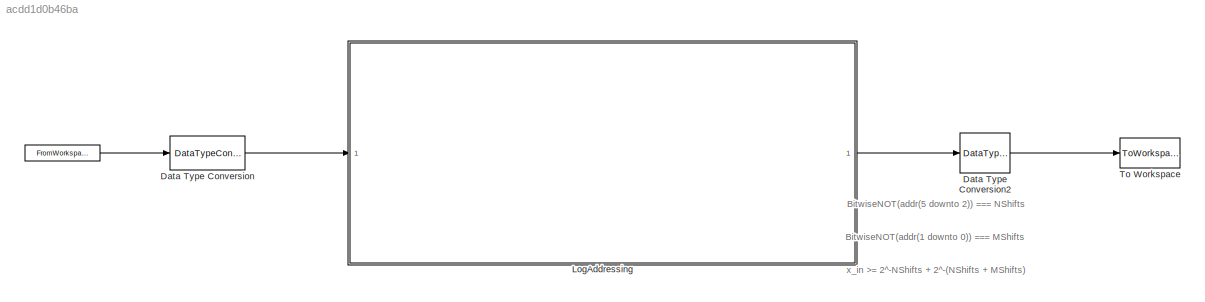
MODEL slx_acdd1d0b46ba
KIND model
CONFIG AbsTol = auto
CONFIG EnableMultiTasking = off
CONFIG FixedStep = auto
CONFIG InitFcn = Fs_system = 98*10^6; %98 MHz\nTs_system = 1/Fs_system;\n\nx_ts = logspace(-5, 0.2, 1000000)';\ntt = 0:Ts_system:999999*Ts_system;\nt_end = tt(end);\n\nW_bits = 32;\nF_bits = 28;\n\nx_ts = [tt', x_ts];
CONFIG MaxStep = auto
CONFIG MinStep = auto
CONFIG RelTol = 1e-3
CONFIG SampleTimeConstraint = Unconstrained
CONFIG Solver = VariableStepAuto
CONFIG SolverName = VariableStepAuto
CONFIG StartTime = 0.0
CONFIG StopTime = t_end
BLOCK [FromWorkspace]  
  Interpolate = off
  OutputAfterFinalValue = Holding final value
  SampleTime = Ts_system
  VariableName = x_ts
BLOCK [DataTypeConversion] Data Type Conversion
  OutDataTypeStr = fixdt(0,W_bits,F_bits)
  RndMeth = Floor
  SaturateOnIntegerOverflow = off
BLOCK [DataTypeConversion] Data Type Conversion2
  OutDataTypeStr = fixdt(0,6,0)
  RndMeth = Floor
  SaturateOnIntegerOverflow = off
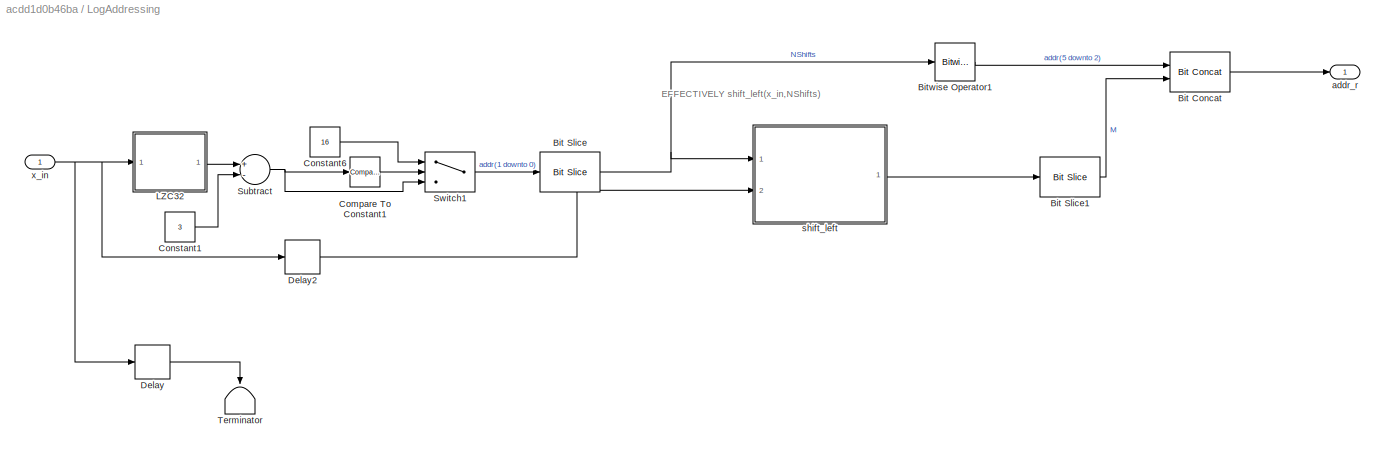
BLOCK [SubSystem] LogAddressing
  Ports = [1, 1]
  RequestExecContextInheritance = off
BLOCK [Reference] LogAddressing/Bit Concat  REF=hdlsllib/Logic and Bit
Operations/Bit Concat
  Ports = [2, 1]
  SourceBlock = hdlsllib/Logic and Bit\nOperations/Bit Concat
  SourceProductBaseCode = SL
  SourceProductName = Simulink
  SourceType = Bit Concat
BLOCK [Reference] LogAddressing/Bit Slice  REF=hdlsllib/Logic and Bit
Operations/Bit Slice
  Ports = [1, 1]
  SourceBlock = hdlsllib/Logic and Bit\nOperations/Bit Slice
  SourceProductBaseCode = SL
  SourceProductName = Simulink
  SourceType = Bit Slice
BLOCK [Reference] LogAddressing/Bit Slice1  REF=hdlsllib/Logic and Bit
Operations/Bit Slice
  Ports = [1, 1]
  SourceBlock = hdlsllib/Logic and Bit\nOperations/Bit Slice
  SourceProductBaseCode = SL
  SourceProductName = Simulink
  SourceType = Bit Slice
BLOCK [Reference] LogAddressing/Bitwise Operator1  REF=simulink/Logic and Bit
Operations/Bitwise
Operator
  Ports = [1, 1]
  SourceBlock = simulink/Logic and Bit\nOperations/Bitwise\nOperator
  SourceProductBaseCode = SL
  SourceProductName = Simulink
  SourceType = Bitwise Operator
BLOCK [Reference] LogAddressing/Compare To Constant1  REF=simulink/Logic and Bit
Operations/Compare
To Constant
  Ports = [1, 1]
  SourceBlock = simulink/Logic and Bit\nOperations/Compare\nTo Constant
  SourceProductBaseCode = SL
  SourceProductName = Simulink
  SourceType = Compare To Constant
BLOCK [Constant] LogAddressing/Constant1
  SampleTime = -1
  Value = 3
BLOCK [Constant] LogAddressing/Constant6
  OutDataTypeStr = fixdt(0,6)
  SampleTime = -1
  Value = 16
BLOCK [Delay] LogAddressing/Delay
  DelayLength = 1
  InputPortMap = u0
  Ports = [1, 1]
  SampleTime = Ts_system
BLOCK [Delay] LogAddressing/Delay2
  DelayLength = 1
  InputPortMap = u0
  Ports = [1, 1]
  SampleTime = Ts_system
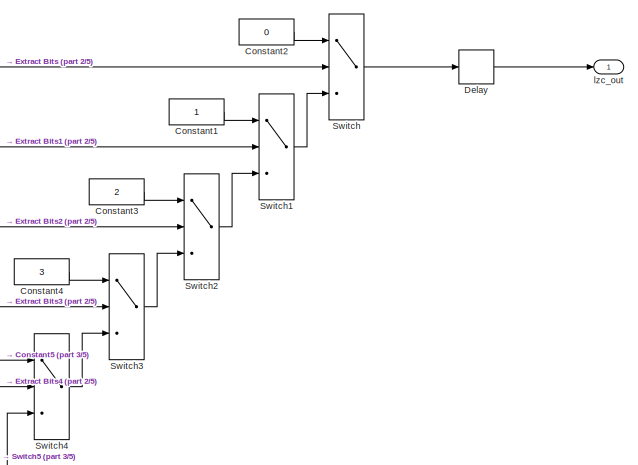
[diagram: LogAddressing/LZC32 - part 1/5, top right region]
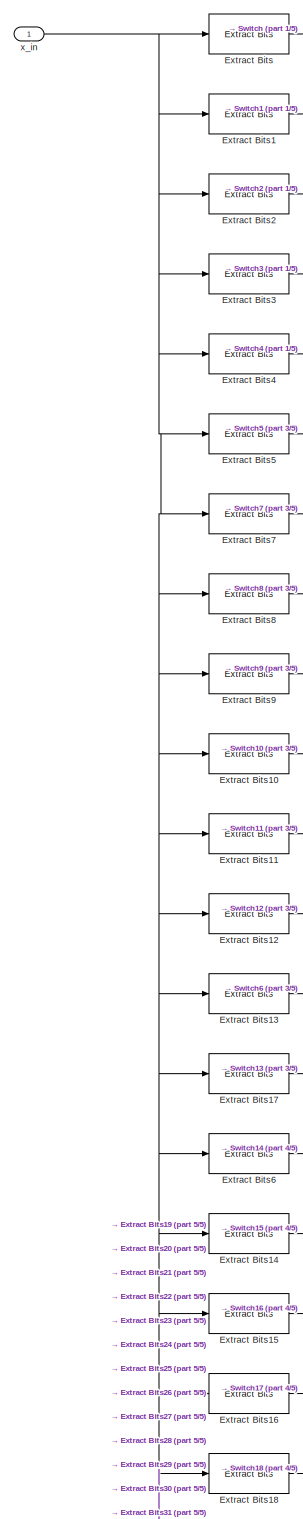
[diagram: LogAddressing/LZC32 - part 2/5, top left region]
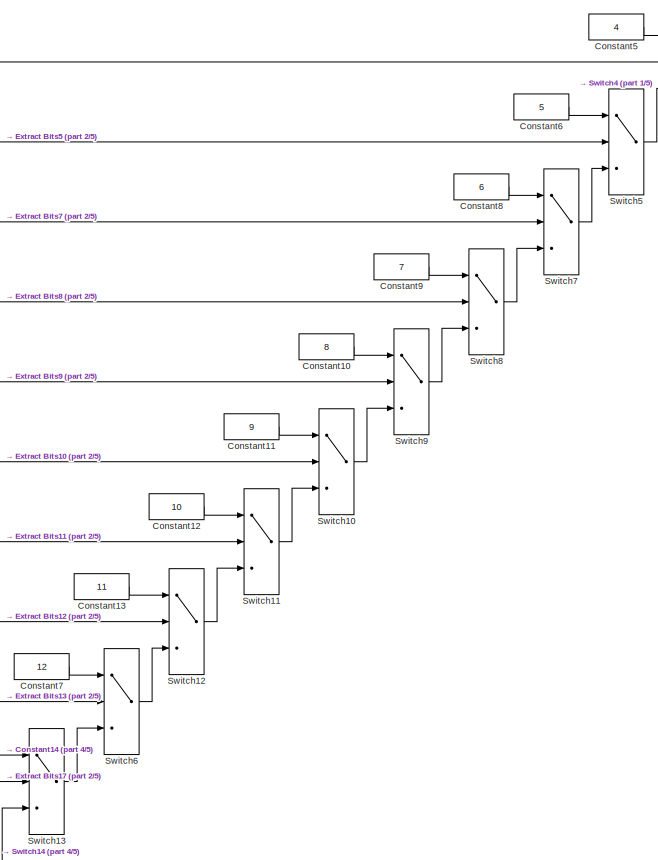
[diagram: LogAddressing/LZC32 - part 3/5, top right region]
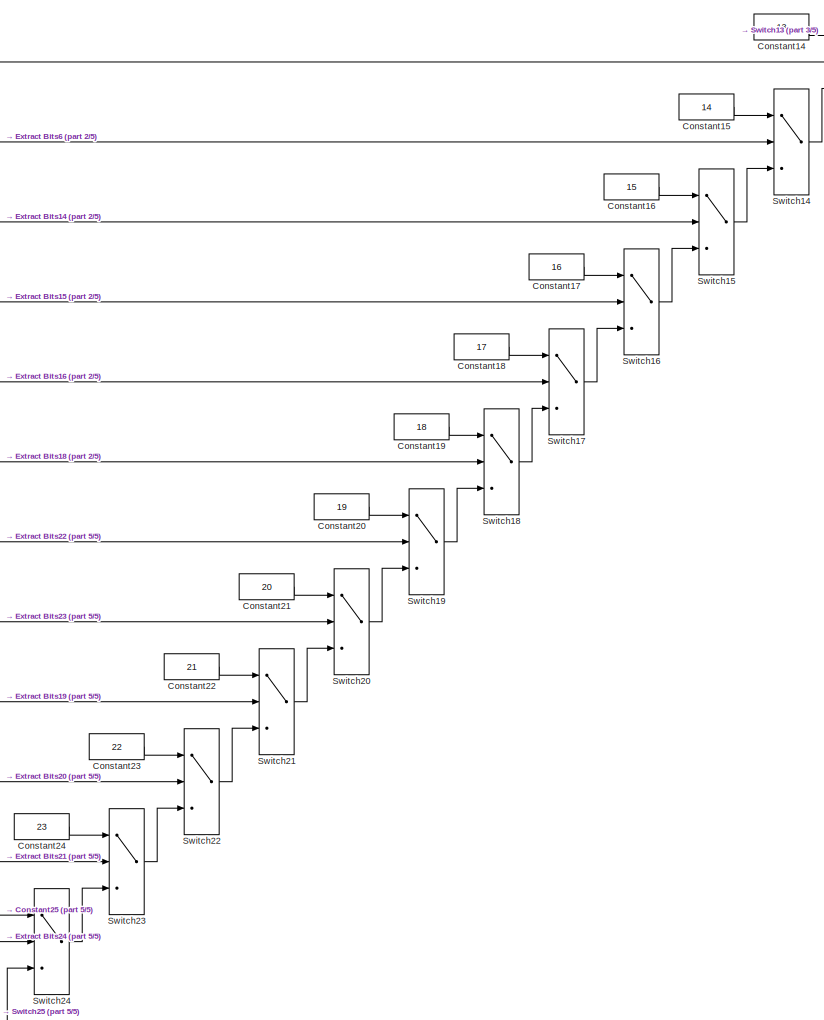
[diagram: LogAddressing/LZC32 - part 4/5, central region]
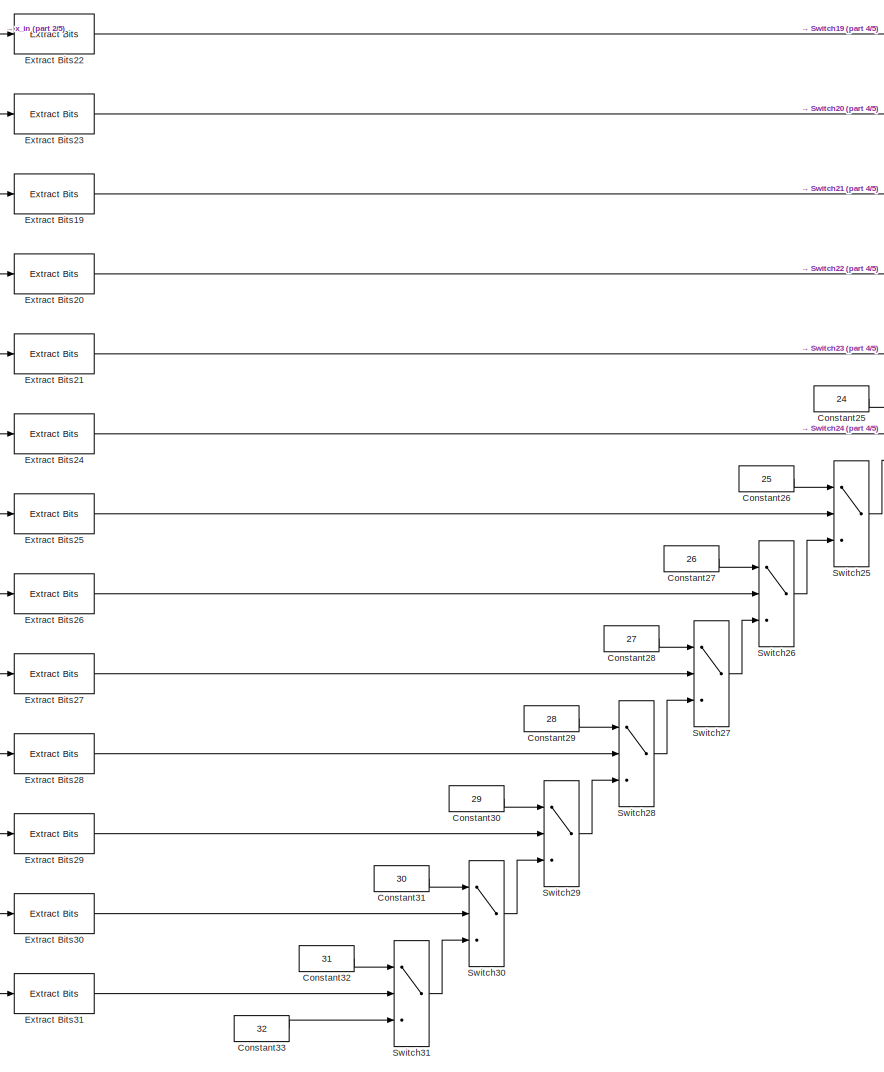
[diagram: LogAddressing/LZC32 - part 5/5, bottom left region]
BLOCK [SubSystem] LogAddressing/LZC32
  Ports = [1, 1]
  RequestExecContextInheritance = off
  TreatAsAtomicUnit = on
BLOCK [Constant] LogAddressing/LZC32/Constant1
  OutDataTypeStr = fixdt(0,6,0)
  SampleTime = Ts_system
BLOCK [Constant] LogAddressing/LZC32/Constant10
  OutDataTypeStr = fixdt(0,6,0)
  SampleTime = Ts_system
  Value = 8
BLOCK [Constant] LogAddressing/LZC32/Constant11
  OutDataTypeStr = fixdt(0,6,0)
  SampleTime = Ts_system
  Value = 9
BLOCK [Constant] LogAddressing/LZC32/Constant12
  OutDataTypeStr = fixdt(0,6,0)
  SampleTime = Ts_system
  Value = 10
BLOCK [Constant] LogAddressing/LZC32/Constant13
  OutDataTypeStr = fixdt(0,6,0)
  SampleTime = Ts_system
  Value = 11
BLOCK [Constant] LogAddressing/LZC32/Constant14
  OutDataTypeStr = fixdt(0,6,0)
  SampleTime = Ts_system
  Value = 13
BLOCK [Constant] LogAddressing/LZC32/Constant15
  OutDataTypeStr = fixdt(0,6,0)
  SampleTime = Ts_system
  Value = 14
BLOCK [Constant] LogAddressing/LZC32/Constant16
  OutDataTypeStr = fixdt(0,6,0)
  SampleTime = Ts_system
  Value = 15
BLOCK [Constant] LogAddressing/LZC32/Constant17
  OutDataTypeStr = fixdt(0,6,0)
  SampleTime = Ts_system
  Value = 16
BLOCK [Constant] LogAddressing/LZC32/Constant18
  OutDataTypeStr = fixdt(0,6,0)
  SampleTime = Ts_system
  Value = 17
BLOCK [Constant] LogAddressing/LZC32/Constant19
  OutDataTypeStr = fixdt(0,6,0)
  SampleTime = Ts_system
  Value = 18
BLOCK [Constant] LogAddressing/LZC32/Constant2
  OutDataTypeStr = fixdt(0,6,0)
  SampleTime = Ts_system
  Value = 0
BLOCK [Constant] LogAddressing/LZC32/Constant20
  OutDataTypeStr = fixdt(0,6,0)
  SampleTime = Ts_system
  Value = 19
BLOCK [Constant] LogAddressing/LZC32/Constant21
  OutDataTypeStr = fixdt(0,6,0)
  SampleTime = Ts_system
  Value = 20
BLOCK [Constant] LogAddressing/LZC32/Constant22
  OutDataTypeStr = fixdt(0,6,0)
  SampleTime = Ts_system
  Value = 21
BLOCK [Constant] LogAddressing/LZC32/Constant23
  OutDataTypeStr = fixdt(0,6,0)
  SampleTime = Ts_system
  Value = 22
BLOCK [Constant] LogAddressing/LZC32/Constant24
  OutDataTypeStr = fixdt(0,6,0)
  SampleTime = Ts_system
  Value = 23
BLOCK [Constant] LogAddressing/LZC32/Constant25
  OutDataTypeStr = fixdt(0,6,0)
  SampleTime = Ts_system
  Value = 24
BLOCK [Constant] LogAddressing/LZC32/Constant26
  OutDataTypeStr = fixdt(0,6,0)
  SampleTime = Ts_system
  Value = 25
BLOCK [Constant] LogAddressing/LZC32/Constant27
  OutDataTypeStr = fixdt(0,6,0)
  SampleTime = Ts_system
  Value = 26
BLOCK [Constant] LogAddressing/LZC32/Constant28
  OutDataTypeStr = fixdt(0,6,0)
  SampleTime = Ts_system
  Value = 27
BLOCK [Constant] LogAddressing/LZC32/Constant29
  OutDataTypeStr = fixdt(0,6,0)
  SampleTime = Ts_system
  Value = 28
BLOCK [Constant] LogAddressing/LZC32/Constant3
  OutDataTypeStr = fixdt(0,6,0)
  SampleTime = Ts_system
  Value = 2
BLOCK [Constant] LogAddressing/LZC32/Constant30
  OutDataTypeStr = fixdt(0,6,0)
  SampleTime = Ts_system
  Value = 29
BLOCK [Constant] LogAddressing/LZC32/Constant31
  OutDataTypeStr = fixdt(0,6,0)
  SampleTime = Ts_system
  Value = 30
BLOCK [Constant] LogAddressing/LZC32/Constant32
  OutDataTypeStr = fixdt(0,6,0)
  SampleTime = Ts_system
  Value = 31
BLOCK [Constant] LogAddressing/LZC32/Constant33
  OutDataTypeStr = fixdt(0,6,0)
  SampleTime = Ts_system
  Value = 32
BLOCK [Constant] LogAddressing/LZC32/Constant4
  OutDataTypeStr = fixdt(0,6,0)
  SampleTime = Ts_system
  Value = 3
BLOCK [Constant] LogAddressing/LZC32/Constant5
  OutDataTypeStr = fixdt(0,6,0)
  SampleTime = Ts_system
  Value = 4
BLOCK [Constant] LogAddressing/LZC32/Constant6
  OutDataTypeStr = fixdt(0,6,0)
  SampleTime = Ts_system
  Value = 5
BLOCK [Constant] LogAddressing/LZC32/Constant7
  OutDataTypeStr = fixdt(0,6,0)
  SampleTime = Ts_system
  Value = 12
BLOCK [Constant] LogAddressing/LZC32/Constant8
  OutDataTypeStr = fixdt(0,6,0)
  SampleTime = Ts_system
  Value = 6
BLOCK [Constant] LogAddressing/LZC32/Constant9
  OutDataTypeStr = fixdt(0,6,0)
  SampleTime = Ts_system
  Value = 7
BLOCK [Delay] LogAddressing/LZC32/Delay
  DelayLength = 1
  InputPortMap = u0
  Ports = [1, 1]
  SampleTime = Ts_system
BLOCK [Reference] LogAddressing/LZC32/Extract Bits  REF=simulink/Logic and Bit
Operations/Extract Bits
  Ports = [1, 1]
  SourceBlock = simulink/Logic and Bit\nOperations/Extract Bits
  SourceProductBaseCode = SL
  SourceProductName = Simulink
  SourceType = Extract Bits
BLOCK [Reference] LogAddressing/LZC32/Extract Bits1  REF=simulink/Logic and Bit
Operations/Extract Bits
  Ports = [1, 1]
  SourceBlock = simulink/Logic and Bit\nOperations/Extract Bits
  SourceProductBaseCode = SL
  SourceProductName = Simulink
  SourceType = Extract Bits
BLOCK [Reference] LogAddressing/LZC32/Extract Bits10  REF=simulink/Logic and Bit
Operations/Extract Bits
  Ports = [1, 1]
  SourceBlock = simulink/Logic and Bit\nOperations/Extract Bits
  SourceProductBaseCode = SL
  SourceProductName = Simulink
  SourceType = Extract Bits
BLOCK [Reference] LogAddressing/LZC32/Extract Bits11  REF=simulink/Logic and Bit
Operations/Extract Bits
  Ports = [1, 1]
  SourceBlock = simulink/Logic and Bit\nOperations/Extract Bits
  SourceProductBaseCode = SL
  SourceProductName = Simulink
  SourceType = Extract Bits
BLOCK [Reference] LogAddressing/LZC32/Extract Bits12  REF=simulink/Logic and Bit
Operations/Extract Bits
  Ports = [1, 1]
  SourceBlock = simulink/Logic and Bit\nOperations/Extract Bits
  SourceProductBaseCode = SL
  SourceProductName = Simulink
  SourceType = Extract Bits
BLOCK [Reference] LogAddressing/LZC32/Extract Bits13  REF=simulink/Logic and Bit
Operations/Extract Bits
  Ports = [1, 1]
  SourceBlock = simulink/Logic and Bit\nOperations/Extract Bits
  SourceProductBaseCode = SL
  SourceProductName = Simulink
  SourceType = Extract Bits
BLOCK [Reference] LogAddressing/LZC32/Extract Bits14  REF=simulink/Logic and Bit
Operations/Extract Bits
  Ports = [1, 1]
  SourceBlock = simulink/Logic and Bit\nOperations/Extract Bits
  SourceProductBaseCode = SL
  SourceProductName = Simulink
  SourceType = Extract Bits
BLOCK [Reference] LogAddressing/LZC32/Extract Bits15  REF=simulink/Logic and Bit
Operations/Extract Bits
  Ports = [1, 1]
  SourceBlock = simulink/Logic and Bit\nOperations/Extract Bits
  SourceProductBaseCode = SL
  SourceProductName = Simulink
  SourceType = Extract Bits
BLOCK [Reference] LogAddressing/LZC32/Extract Bits16  REF=simulink/Logic and Bit
Operations/Extract Bits
  Ports = [1, 1]
  SourceBlock = simulink/Logic and Bit\nOperations/Extract Bits
  SourceProductBaseCode = SL
  SourceProductName = Simulink
  SourceType = Extract Bits
BLOCK [Reference] LogAddressing/LZC32/Extract Bits17  REF=simulink/Logic and Bit
Operations/Extract Bits
  Ports = [1, 1]
  SourceBlock = simulink/Logic and Bit\nOperations/Extract Bits
  SourceProductBaseCode = SL
  SourceProductName = Simulink
  SourceType = Extract Bits
BLOCK [Reference] LogAddressing/LZC32/Extract Bits18  REF=simulink/Logic and Bit
Operations/Extract Bits
  Ports = [1, 1]
  SourceBlock = simulink/Logic and Bit\nOperations/Extract Bits
  SourceProductBaseCode = SL
  SourceProductName = Simulink
  SourceType = Extract Bits
BLOCK [Reference] LogAddressing/LZC32/Extract Bits19  REF=simulink/Logic and Bit
Operations/Extract Bits
  Ports = [1, 1]
  SourceBlock = simulink/Logic and Bit\nOperations/Extract Bits
  SourceProductBaseCode = SL
  SourceProductName = Simulink
  SourceType = Extract Bits
BLOCK [Reference] LogAddressing/LZC32/Extract Bits2  REF=simulink/Logic and Bit
Operations/Extract Bits
  Ports = [1, 1]
  SourceBlock = simulink/Logic and Bit\nOperations/Extract Bits
  SourceProductBaseCode = SL
  SourceProductName = Simulink
  SourceType = Extract Bits
BLOCK [Reference] LogAddressing/LZC32/Extract Bits20  REF=simulink/Logic and Bit
Operations/Extract Bits
  Ports = [1, 1]
  SourceBlock = simulink/Logic and Bit\nOperations/Extract Bits
  SourceProductBaseCode = SL
  SourceProductName = Simulink
  SourceType = Extract Bits
BLOCK [Reference] LogAddressing/LZC32/Extract Bits21  REF=simulink/Logic and Bit
Operations/Extract Bits
  Ports = [1, 1]
  SourceBlock = simulink/Logic and Bit\nOperations/Extract Bits
  SourceProductBaseCode = SL
  SourceProductName = Simulink
  SourceType = Extract Bits
BLOCK [Reference] LogAddressing/LZC32/Extract Bits22  REF=simulink/Logic and Bit
Operations/Extract Bits
  Ports = [1, 1]
  SourceBlock = simulink/Logic and Bit\nOperations/Extract Bits
  SourceProductBaseCode = SL
  SourceProductName = Simulink
  SourceType = Extract Bits
BLOCK [Reference] LogAddressing/LZC32/Extract Bits23  REF=simulink/Logic and Bit
Operations/Extract Bits
  Ports = [1, 1]
  SourceBlock = simulink/Logic and Bit\nOperations/Extract Bits
  SourceProductBaseCode = SL
  SourceProductName = Simulink
  SourceType = Extract Bits
BLOCK [Reference] LogAddressing/LZC32/Extract Bits24  REF=simulink/Logic and Bit
Operations/Extract Bits
  Ports = [1, 1]
  SourceBlock = simulink/Logic and Bit\nOperations/Extract Bits
  SourceProductBaseCode = SL
  SourceProductName = Simulink
  SourceType = Extract Bits
BLOCK [Reference] LogAddressing/LZC32/Extract Bits25  REF=simulink/Logic and Bit
Operations/Extract Bits
  Ports = [1, 1]
  SourceBlock = simulink/Logic and Bit\nOperations/Extract Bits
  SourceProductBaseCode = SL
  SourceProductName = Simulink
  SourceType = Extract Bits
BLOCK [Reference] LogAddressing/LZC32/Extract Bits26  REF=simulink/Logic and Bit
Operations/Extract Bits
  Ports = [1, 1]
  SourceBlock = simulink/Logic and Bit\nOperations/Extract Bits
  SourceProductBaseCode = SL
  SourceProductName = Simulink
  SourceType = Extract Bits
BLOCK [Reference] LogAddressing/LZC32/Extract Bits27  REF=simulink/Logic and Bit
Operations/Extract Bits
  Ports = [1, 1]
  SourceBlock = simulink/Logic and Bit\nOperations/Extract Bits
  SourceProductBaseCode = SL
  SourceProductName = Simulink
  SourceType = Extract Bits
BLOCK [Reference] LogAddressing/LZC32/Extract Bits28  REF=simulink/Logic and Bit
Operations/Extract Bits
  Ports = [1, 1]
  SourceBlock = simulink/Logic and Bit\nOperations/Extract Bits
  SourceProductBaseCode = SL
  SourceProductName = Simulink
  SourceType = Extract Bits
BLOCK [Reference] LogAddressing/LZC32/Extract Bits29  REF=simulink/Logic and Bit
Operations/Extract Bits
  Ports = [1, 1]
  SourceBlock = simulink/Logic and Bit\nOperations/Extract Bits
  SourceProductBaseCode = SL
  SourceProductName = Simulink
  SourceType = Extract Bits
BLOCK [Reference] LogAddressing/LZC32/Extract Bits3  REF=simulink/Logic and Bit
Operations/Extract Bits
  Ports = [1, 1]
  SourceBlock = simulink/Logic and Bit\nOperations/Extract Bits
  SourceProductBaseCode = SL
  SourceProductName = Simulink
  SourceType = Extract Bits
BLOCK [Reference] LogAddressing/LZC32/Extract Bits30  REF=simulink/Logic and Bit
Operations/Extract Bits
  Ports = [1, 1]
  SourceBlock = simulink/Logic and Bit\nOperations/Extract Bits
  SourceProductBaseCode = SL
  SourceProductName = Simulink
  SourceType = Extract Bits
BLOCK [Reference] LogAddressing/LZC32/Extract Bits31  REF=simulink/Logic and Bit
Operations/Extract Bits
  Ports = [1, 1]
  SourceBlock = simulink/Logic and Bit\nOperations/Extract Bits
  SourceProductBaseCode = SL
  SourceProductName = Simulink
  SourceType = Extract Bits
BLOCK [Reference] LogAddressing/LZC32/Extract Bits4  REF=simulink/Logic and Bit
Operations/Extract Bits
  Ports = [1, 1]
  SourceBlock = simulink/Logic and Bit\nOperations/Extract Bits
  SourceProductBaseCode = SL
  SourceProductName = Simulink
  SourceType = Extract Bits
BLOCK [Reference] LogAddressing/LZC32/Extract Bits5  REF=simulink/Logic and Bit
Operations/Extract Bits
  Ports = [1, 1]
  SourceBlock = simulink/Logic and Bit\nOperations/Extract Bits
  SourceProductBaseCode = SL
  SourceProductName = Simulink
  SourceType = Extract Bits
BLOCK [Reference] LogAddressing/LZC32/Extract Bits6  REF=simulink/Logic and Bit
Operations/Extract Bits
  Ports = [1, 1]
  SourceBlock = simulink/Logic and Bit\nOperations/Extract Bits
  SourceProductBaseCode = SL
  SourceProductName = Simulink
  SourceType = Extract Bits
BLOCK [Reference] LogAddressing/LZC32/Extract Bits7  REF=simulink/Logic and Bit
Operations/Extract Bits
  Ports = [1, 1]
  SourceBlock = simulink/Logic and Bit\nOperations/Extract Bits
  SourceProductBaseCode = SL
  SourceProductName = Simulink
  SourceType = Extract Bits
BLOCK [Reference] LogAddressing/LZC32/Extract Bits8  REF=simulink/Logic and Bit
Operations/Extract Bits
  Ports = [1, 1]
  SourceBlock = simulink/Logic and Bit\nOperations/Extract Bits
  SourceProductBaseCode = SL
  SourceProductName = Simulink
  SourceType = Extract Bits
BLOCK [Reference] LogAddressing/LZC32/Extract Bits9  REF=simulink/Logic and Bit
Operations/Extract Bits
  Ports = [1, 1]
  SourceBlock = simulink/Logic and Bit\nOperations/Extract Bits
  SourceProductBaseCode = SL
  SourceProductName = Simulink
  SourceType = Extract Bits
BLOCK [Switch] LogAddressing/LZC32/Switch
  Criteria = u2 ~= 0
  InputSameDT = off
  SaturateOnIntegerOverflow = off
BLOCK [Switch] LogAddressing/LZC32/Switch1
  Criteria = u2 ~= 0
  InputSameDT = off
  SaturateOnIntegerOverflow = off
BLOCK [Switch] LogAddressing/LZC32/Switch10
  Criteria = u2 ~= 0
  InputSameDT = off
  SaturateOnIntegerOverflow = off
BLOCK [Switch] LogAddressing/LZC32/Switch11
  Criteria = u2 ~= 0
  InputSameDT = off
  SaturateOnIntegerOverflow = off
BLOCK [Switch] LogAddressing/LZC32/Switch12
  Criteria = u2 ~= 0
  InputSameDT = off
  SaturateOnIntegerOverflow = off
BLOCK [Switch] LogAddressing/LZC32/Switch13
  Criteria = u2 ~= 0
  InputSameDT = off
  SaturateOnIntegerOverflow = off
BLOCK [Switch] LogAddressing/LZC32/Switch14
  Criteria = u2 ~= 0
  InputSameDT = off
  SaturateOnIntegerOverflow = off
BLOCK [Switch] LogAddressing/LZC32/Switch15
  Criteria = u2 ~= 0
  InputSameDT = off
  SaturateOnIntegerOverflow = off
BLOCK [Switch] LogAddressing/LZC32/Switch16
  Criteria = u2 ~= 0
  InputSameDT = off
  SaturateOnIntegerOverflow = off
BLOCK [Switch] LogAddressing/LZC32/Switch17
  Criteria = u2 ~= 0
  InputSameDT = off
  SaturateOnIntegerOverflow = off
BLOCK [Switch] LogAddressing/LZC32/Switch18
  Criteria = u2 ~= 0
  InputSameDT = off
  SaturateOnIntegerOverflow = off
BLOCK [Switch] LogAddressing/LZC32/Switch19
  Criteria = u2 ~= 0
  InputSameDT = off
  SaturateOnIntegerOverflow = off
BLOCK [Switch] LogAddressing/LZC32/Switch2
  Criteria = u2 ~= 0
  InputSameDT = off
  SaturateOnIntegerOverflow = off
BLOCK [Switch] LogAddressing/LZC32/Switch20
  Criteria = u2 ~= 0
  InputSameDT = off
  SaturateOnIntegerOverflow = off
BLOCK [Switch] LogAddressing/LZC32/Switch21
  Criteria = u2 ~= 0
  InputSameDT = off
  SaturateOnIntegerOverflow = off
BLOCK [Switch] LogAddressing/LZC32/Switch22
  Criteria = u2 ~= 0
  InputSameDT = off
  SaturateOnIntegerOverflow = off
BLOCK [Switch] LogAddressing/LZC32/Switch23
  Criteria = u2 ~= 0
  InputSameDT = off
  SaturateOnIntegerOverflow = off
BLOCK [Switch] LogAddressing/LZC32/Switch24
  Criteria = u2 ~= 0
  InputSameDT = off
  SaturateOnIntegerOverflow = off
BLOCK [Switch] LogAddressing/LZC32/Switch25
  Criteria = u2 ~= 0
  InputSameDT = off
  SaturateOnIntegerOverflow = off
BLOCK [Switch] LogAddressing/LZC32/Switch26
  Criteria = u2 ~= 0
  InputSameDT = off
  SaturateOnIntegerOverflow = off
BLOCK [Switch] LogAddressing/LZC32/Switch27
  Criteria = u2 ~= 0
  InputSameDT = off
  SaturateOnIntegerOverflow = off
BLOCK [Switch] LogAddressing/LZC32/Switch28
  Criteria = u2 ~= 0
  InputSameDT = off
  SaturateOnIntegerOverflow = off
BLOCK [Switch] LogAddressing/LZC32/Switch29
  Criteria = u2 ~= 0
  InputSameDT = off
  SaturateOnIntegerOverflow = off
BLOCK [Switch] LogAddressing/LZC32/Switch3
  Criteria = u2 ~= 0
  InputSameDT = off
  SaturateOnIntegerOverflow = off
BLOCK [Switch] LogAddressing/LZC32/Switch30
  Criteria = u2 ~= 0
  InputSameDT = off
  SaturateOnIntegerOverflow = off
BLOCK [Switch] LogAddressing/LZC32/Switch31
  Criteria = u2 ~= 0
  InputSameDT = off
  SaturateOnIntegerOverflow = off
BLOCK [Switch] LogAddressing/LZC32/Switch4
  Criteria = u2 ~= 0
  InputSameDT = off
  SaturateOnIntegerOverflow = off
BLOCK [Switch] LogAddressing/LZC32/Switch5
  Criteria = u2 ~= 0
  InputSameDT = off
  SaturateOnIntegerOverflow = off
BLOCK [Switch] LogAddressing/LZC32/Switch6
  Criteria = u2 ~= 0
  InputSameDT = off
  SaturateOnIntegerOverflow = off
BLOCK [Switch] LogAddressing/LZC32/Switch7
  Criteria = u2 ~= 0
  InputSameDT = off
  SaturateOnIntegerOverflow = off
BLOCK [Switch] LogAddressing/LZC32/Switch8
  Criteria = u2 ~= 0
  InputSameDT = off
  SaturateOnIntegerOverflow = off
BLOCK [Switch] LogAddressing/LZC32/Switch9
  Criteria = u2 ~= 0
  InputSameDT = off
  SaturateOnIntegerOverflow = off
BLOCK [Outport] LogAddressing/LZC32/lzc_out
  IconDisplay = Port number
BLOCK [Inport] LogAddressing/LZC32/x_in
  IconDisplay = Port number
BLOCK [Sum] LogAddressing/Subtract
  AccumDataTypeStr = Inherit: Same as first input
  InputSameDT = off
  Inputs = +-
  Ports = [2, 1]
  SaturateOnIntegerOverflow = off
BLOCK [Switch] LogAddressing/Switch1
  Criteria = u2 ~= 0
  InputSameDT = off
  SaturateOnIntegerOverflow = off
BLOCK [Terminator] LogAddressing/Terminator
BLOCK [Outport] LogAddressing/addr_r
  IconDisplay = Port number
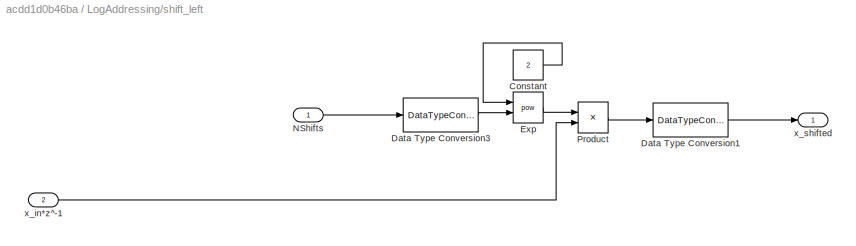
BLOCK [SubSystem] LogAddressing/shift_left
  Ports = [2, 1]
  RequestExecContextInheritance = off
BLOCK [Constant] LogAddressing/shift_left/Constant
  SampleTime = -1
  Value = 2
BLOCK [DataTypeConversion] LogAddressing/shift_left/Data Type Conversion1
  OutDataTypeStr = fixdt(0,W_bits,F_bits)
  RndMeth = Floor
  SaturateOnIntegerOverflow = off
BLOCK [DataTypeConversion] LogAddressing/shift_left/Data Type Conversion3
  OutDataTypeStr = double
  RndMeth = Floor
  SaturateOnIntegerOverflow = off
BLOCK [Math] LogAddressing/shift_left/Exp
  Operator = pow
  Ports = [2, 1]
BLOCK [Inport] LogAddressing/shift_left/NShifts
  IconDisplay = Port number
BLOCK [Product] LogAddressing/shift_left/Product
  InputSameDT = off
  OutDataTypeStr = Inherit: Inherit via internal rule
  Ports = [2, 1]
  RndMeth = Floor
  SaturateOnIntegerOverflow = off
BLOCK [Inport] LogAddressing/shift_left/x_in*z^-1
  IconDisplay = Port number
  Port = 2
BLOCK [Outport] LogAddressing/shift_left/x_shifted
  IconDisplay = Port number
BLOCK [Inport] LogAddressing/x_in
  IconDisplay = Port number
BLOCK [ToWorkspace] To Workspace
  FixptAsFi = on
  MaxDataPoints = inf
  Ports = [1]
  SampleTime = -1
  SaveFormat = Timeseries
  VariableName = addr_out
ANNOTATION (root): BitwiseNOT(addr(1 downto 0)) === MShifts
ANNOTATION (root): BitwiseNOT(addr(5 downto 2)) === NShifts
ANNOTATION (root): x_in >= 2^-NShifts + 2^-(NShifts + MShifts)
ANNOTATION LogAddressing: EFFECTIVELY shift_left(x_in,NShifts)
LINE  :1 -> Data Type Conversion:1
LINE Data Type Conversion2:1 -> To Workspace:1
LINE Data Type Conversion:1 -> LogAddressing:1
LINE LogAddressing/Bit Concat:1 -> LogAddressing/addr_r:1
LINE LogAddressing/Bit Slice1:1 -> LogAddressing/Bit Concat:2
NET LogAddressing/Bit Slice:1 -> LogAddressing/Bitwise Operator1:1, LogAddressing/shift_left:1
LINE LogAddressing/Bitwise Operator1:1 -> LogAddressing/Bit Concat:1
LINE LogAddressing/Compare To Constant1:1 -> LogAddressing/Switch1:2
LINE LogAddressing/Constant1:1 -> LogAddressing/Subtract:2
LINE LogAddressing/Constant6:1 -> LogAddressing/Switch1:1
LINE LogAddressing/Delay2:1 -> LogAddressing/shift_left:2
LINE LogAddressing/Delay:1 -> LogAddressing/Terminator:1
LINE LogAddressing/LZC32/Constant10:1 -> LogAddressing/LZC32/Switch9:1
LINE LogAddressing/LZC32/Constant11:1 -> LogAddressing/LZC32/Switch10:1
LINE LogAddressing/LZC32/Constant12:1 -> LogAddressing/LZC32/Switch11:1
LINE LogAddressing/LZC32/Constant13:1 -> LogAddressing/LZC32/Switch12:1
LINE LogAddressing/LZC32/Constant14:1 -> LogAddressing/LZC32/Switch13:1
LINE LogAddressing/LZC32/Constant15:1 -> LogAddressing/LZC32/Switch14:1
LINE LogAddressing/LZC32/Constant16:1 -> LogAddressing/LZC32/Switch15:1
LINE LogAddressing/LZC32/Constant17:1 -> LogAddressing/LZC32/Switch16:1
LINE LogAddressing/LZC32/Constant18:1 -> LogAddressing/LZC32/Switch17:1
LINE LogAddressing/LZC32/Constant19:1 -> LogAddressing/LZC32/Switch18:1
LINE LogAddressing/LZC32/Constant1:1 -> LogAddressing/LZC32/Switch1:1
LINE LogAddressing/LZC32/Constant20:1 -> LogAddressing/LZC32/Switch19:1
LINE LogAddressing/LZC32/Constant21:1 -> LogAddressing/LZC32/Switch20:1
LINE LogAddressing/LZC32/Constant22:1 -> LogAddressing/LZC32/Switch21:1
LINE LogAddressing/LZC32/Constant23:1 -> LogAddressing/LZC32/Switch22:1
LINE LogAddressing/LZC32/Constant24:1 -> LogAddressing/LZC32/Switch23:1
LINE LogAddressing/LZC32/Constant25:1 -> LogAddressing/LZC32/Switch24:1
LINE LogAddressing/LZC32/Constant26:1 -> LogAddressing/LZC32/Switch25:1
LINE LogAddressing/LZC32/Constant27:1 -> LogAddressing/LZC32/Switch26:1
LINE LogAddressing/LZC32/Constant28:1 -> LogAddressing/LZC32/Switch27:1
LINE LogAddressing/LZC32/Constant29:1 -> LogAddressing/LZC32/Switch28:1
LINE LogAddressing/LZC32/Constant2:1 -> LogAddressing/LZC32/Switch:1
LINE LogAddressing/LZC32/Constant30:1 -> LogAddressing/LZC32/Switch29:1
LINE LogAddressing/LZC32/Constant31:1 -> LogAddressing/LZC32/Switch30:1
LINE LogAddressing/LZC32/Constant32:1 -> LogAddressing/LZC32/Switch31:1
LINE LogAddressing/LZC32/Constant33:1 -> LogAddressing/LZC32/Switch31:3
LINE LogAddressing/LZC32/Constant3:1 -> LogAddressing/LZC32/Switch2:1
LINE LogAddressing/LZC32/Constant4:1 -> LogAddressing/LZC32/Switch3:1
LINE LogAddressing/LZC32/Constant5:1 -> LogAddressing/LZC32/Switch4:1
LINE LogAddressing/LZC32/Constant6:1 -> LogAddressing/LZC32/Switch5:1
LINE LogAddressing/LZC32/Constant7:1 -> LogAddressing/LZC32/Switch6:1
LINE LogAddressing/LZC32/Constant8:1 -> LogAddressing/LZC32/Switch7:1
LINE LogAddressing/LZC32/Constant9:1 -> LogAddressing/LZC32/Switch8:1
LINE LogAddressing/LZC32/Delay:1 -> LogAddressing/LZC32/lzc_out:1
LINE LogAddressing/LZC32/Extract Bits10:1 -> LogAddressing/LZC32/Switch10:2
LINE LogAddressing/LZC32/Extract Bits11:1 -> LogAddressing/LZC32/Switch11:2
LINE LogAddressing/LZC32/Extract Bits12:1 -> LogAddressing/LZC32/Switch12:2
LINE LogAddressing/LZC32/Extract Bits13:1 -> LogAddressing/LZC32/Switch6:2
LINE LogAddressing/LZC32/Extract Bits14:1 -> LogAddressing/LZC32/Switch15:2
LINE LogAddressing/LZC32/Extract Bits15:1 -> LogAddressing/LZC32/Switch16:2
LINE LogAddressing/LZC32/Extract Bits16:1 -> LogAddressing/LZC32/Switch17:2
LINE LogAddressing/LZC32/Extract Bits17:1 -> LogAddressing/LZC32/Switch13:2
LINE LogAddressing/LZC32/Extract Bits18:1 -> LogAddressing/LZC32/Switch18:2
LINE LogAddressing/LZC32/Extract Bits19:1 -> LogAddressing/LZC32/Switch21:2
LINE LogAddressing/LZC32/Extract Bits1:1 -> LogAddressing/LZC32/Switch1:2
LINE LogAddressing/LZC32/Extract Bits20:1 -> LogAddressing/LZC32/Switch22:2
LINE LogAddressing/LZC32/Extract Bits21:1 -> LogAddressing/LZC32/Switch23:2
LINE LogAddressing/LZC32/Extract Bits22:1 -> LogAddressing/LZC32/Switch19:2
LINE LogAddressing/LZC32/Extract Bits23:1 -> LogAddressing/LZC32/Switch20:2
LINE LogAddressing/LZC32/Extract Bits24:1 -> LogAddressing/LZC32/Switch24:2
LINE LogAddressing/LZC32/Extract Bits25:1 -> LogAddressing/LZC32/Switch25:2
LINE LogAddressing/LZC32/Extract Bits26:1 -> LogAddressing/LZC32/Switch26:2
LINE LogAddressing/LZC32/Extract Bits27:1 -> LogAddressing/LZC32/Switch27:2
LINE LogAddressing/LZC32/Extract Bits28:1 -> LogAddressing/LZC32/Switch28:2
LINE LogAddressing/LZC32/Extract Bits29:1 -> LogAddressing/LZC32/Switch29:2
LINE LogAddressing/LZC32/Extract Bits2:1 -> LogAddressing/LZC32/Switch2:2
LINE LogAddressing/LZC32/Extract Bits30:1 -> LogAddressing/LZC32/Switch30:2
LINE LogAddressing/LZC32/Extract Bits31:1 -> LogAddressing/LZC32/Switch31:2
LINE LogAddressing/LZC32/Extract Bits3:1 -> LogAddressing/LZC32/Switch3:2
LINE LogAddressing/LZC32/Extract Bits4:1 -> LogAddressing/LZC32/Switch4:2
LINE LogAddressing/LZC32/Extract Bits5:1 -> LogAddressing/LZC32/Switch5:2
LINE LogAddressing/LZC32/Extract Bits6:1 -> LogAddressing/LZC32/Switch14:2
LINE LogAddressing/LZC32/Extract Bits7:1 -> LogAddressing/LZC32/Switch7:2
LINE LogAddressing/LZC32/Extract Bits8:1 -> LogAddressing/LZC32/Switch8:2
LINE LogAddressing/LZC32/Extract Bits9:1 -> LogAddressing/LZC32/Switch9:2
LINE LogAddressing/LZC32/Extract Bits:1 -> LogAddressing/LZC32/Switch:2
LINE LogAddressing/LZC32/Switch10:1 -> LogAddressing/LZC32/Switch9:3
LINE LogAddressing/LZC32/Switch11:1 -> LogAddressing/LZC32/Switch10:3
LINE LogAddressing/LZC32/Switch12:1 -> LogAddressing/LZC32/Switch11:3
LINE LogAddressing/LZC32/Switch13:1 -> LogAddressing/LZC32/Switch6:3
LINE LogAddressing/LZC32/Switch14:1 -> LogAddressing/LZC32/Switch13:3
LINE LogAddressing/LZC32/Switch15:1 -> LogAddressing/LZC32/Switch14:3
LINE LogAddressing/LZC32/Switch16:1 -> LogAddressing/LZC32/Switch15:3
LINE LogAddressing/LZC32/Switch17:1 -> LogAddressing/LZC32/Switch16:3
LINE LogAddressing/LZC32/Switch18:1 -> LogAddressing/LZC32/Switch17:3
LINE LogAddressing/LZC32/Switch19:1 -> LogAddressing/LZC32/Switch18:3
LINE LogAddressing/LZC32/Switch1:1 -> LogAddressing/LZC32/Switch:3
LINE LogAddressing/LZC32/Switch20:1 -> LogAddressing/LZC32/Switch19:3
LINE LogAddressing/LZC32/Switch21:1 -> LogAddressing/LZC32/Switch20:3
LINE LogAddressing/LZC32/Switch22:1 -> LogAddressing/LZC32/Switch21:3
LINE LogAddressing/LZC32/Switch23:1 -> LogAddressing/LZC32/Switch22:3
LINE LogAddressing/LZC32/Switch24:1 -> LogAddressing/LZC32/Switch23:3
LINE LogAddressing/LZC32/Switch25:1 -> LogAddressing/LZC32/Switch24:3
LINE LogAddressing/LZC32/Switch26:1 -> LogAddressing/LZC32/Switch25:3
LINE LogAddressing/LZC32/Switch27:1 -> LogAddressing/LZC32/Switch26:3
LINE LogAddressing/LZC32/Switch28:1 -> LogAddressing/LZC32/Switch27:3
LINE LogAddressing/LZC32/Switch29:1 -> LogAddressing/LZC32/Switch28:3
LINE LogAddressing/LZC32/Switch2:1 -> LogAddressing/LZC32/Switch1:3
LINE LogAddressing/LZC32/Switch30:1 -> LogAddressing/LZC32/Switch29:3
LINE LogAddressing/LZC32/Switch31:1 -> LogAddressing/LZC32/Switch30:3
LINE LogAddressing/LZC32/Switch3:1 -> LogAddressing/LZC32/Switch2:3
LINE LogAddressing/LZC32/Switch4:1 -> LogAddressing/LZC32/Switch3:3
LINE LogAddressing/LZC32/Switch5:1 -> LogAddressing/LZC32/Switch4:3
LINE LogAddressing/LZC32/Switch6:1 -> LogAddressing/LZC32/Switch12:3
LINE LogAddressing/LZC32/Switch7:1 -> LogAddressing/LZC32/Switch5:3
LINE LogAddressing/LZC32/Switch8:1 -> LogAddressing/LZC32/Switch7:3
LINE LogAddressing/LZC32/Switch9:1 -> LogAddressing/LZC32/Switch8:3
LINE LogAddressing/LZC32/Switch:1 -> LogAddressing/LZC32/Delay:1
NET LogAddressing/LZC32/x_in:1 -> LogAddressing/LZC32/Extract Bits10:1, LogAddressing/LZC32/Extract Bits11:1, LogAddressing/LZC32/Extract Bits12:1, LogAddressing/LZC32/Extract Bits13:1, LogAddressing/LZC32/Extract Bits14:1, LogAddressing/LZC32/Extract Bits15:1, LogAddressing/LZC32/Extract Bits16:1, LogAddressing/LZC32/Extract Bits17:1, LogAddressing/LZC32/Extract Bits18:1, LogAddressing/LZC32/Extract Bits19:1, LogAddressing/LZC32/Extract Bits1:1, LogAddressing/LZC32/Extract Bits20:1, LogAddressing/LZC32/Extract Bits21:1, LogAddressing/LZC32/Extract Bits22:1, LogAddressing/LZC32/Extract Bits23:1, LogAddressing/LZC32/Extract Bits24:1, LogAddressing/LZC32/Extract Bits25:1, LogAddressing/LZC32/Extract Bits26:1, LogAddressing/LZC32/Extract Bits27:1, LogAddressing/LZC32/Extract Bits28:1, LogAddressing/LZC32/Extract Bits29:1, LogAddressing/LZC32/Extract Bits2:1, LogAddressing/LZC32/Extract Bits30:1, LogAddressing/LZC32/Extract Bits31:1, LogAddressing/LZC32/Extract Bits3:1, LogAddressing/LZC32/Extract Bits4:1, LogAddressing/LZC32/Extract Bits5:1, LogAddressing/LZC32/Extract Bits6:1, LogAddressing/LZC32/Extract Bits7:1, LogAddressing/LZC32/Extract Bits8:1, LogAddressing/LZC32/Extract Bits9:1, LogAddressing/LZC32/Extract Bits:1
LINE LogAddressing/LZC32:1 -> LogAddressing/Subtract:1
NET LogAddressing/Subtract:1 -> LogAddressing/Compare To Constant1:1, LogAddressing/Switch1:3
LINE LogAddressing/Switch1:1 -> LogAddressing/Bit Slice:1
LINE LogAddressing/shift_left/Constant:1 -> LogAddressing/shift_left/Exp:1
LINE LogAddressing/shift_left/Data Type Conversion1:1 -> LogAddressing/shift_left/x_shifted:1
LINE LogAddressing/shift_left/Data Type Conversion3:1 -> LogAddressing/shift_left/Exp:2
LINE LogAddressing/shift_left/Exp:1 -> LogAddressing/shift_left/Product:1
LINE LogAddressing/shift_left/NShifts:1 -> LogAddressing/shift_left/Data Type Conversion3:1
LINE LogAddressing/shift_left/Product:1 -> LogAddressing/shift_left/Data Type Conversion1:1
LINE LogAddressing/shift_left/x_in*z^-1:1 -> LogAddressing/shift_left/Product:2
LINE LogAddressing/shift_left:1 -> LogAddressing/Bit Slice1:1
NET LogAddressing/x_in:1 -> LogAddressing/Delay2:1, LogAddressing/Delay:1, LogAddressing/LZC32:1
LINE LogAddressing:1 -> Data Type Conversion2:1
note: NET lines group one-source signal fan-out (src -> all destinations, sorted); 1:1 wires keep LINE
